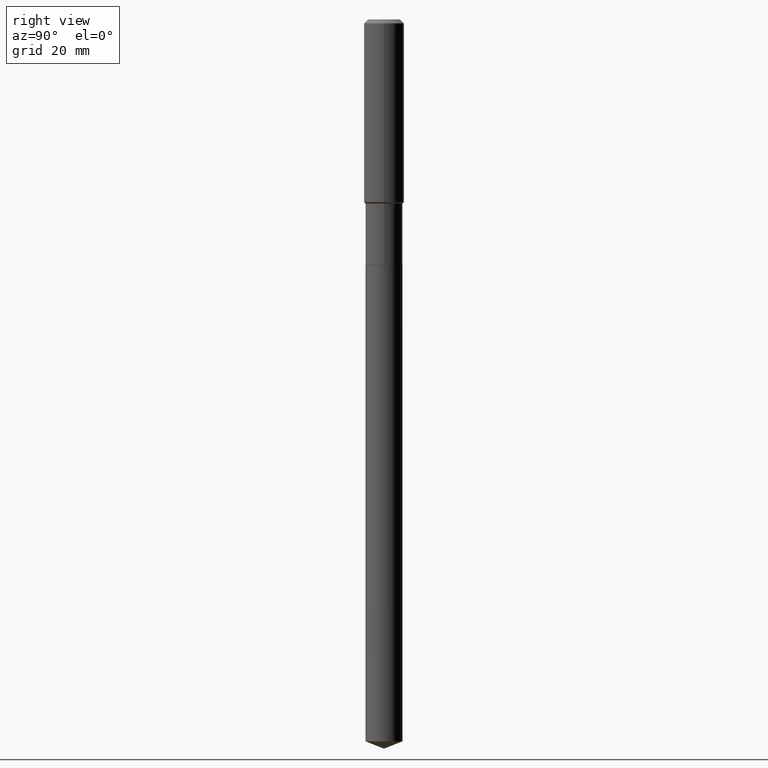
[diagram: clean part render]
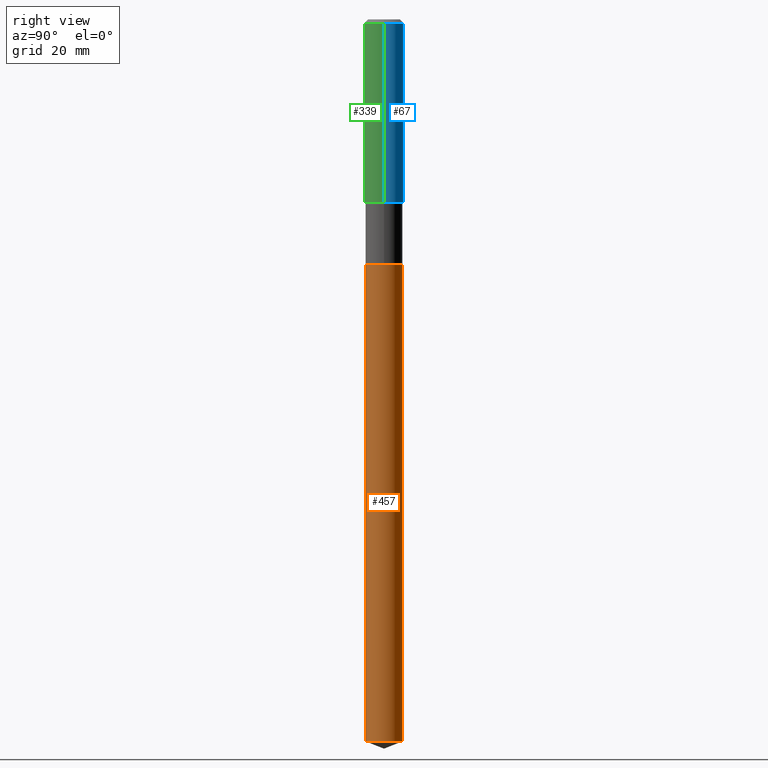
[diagram: same view with three faces highlighted in distinct colors, each labeled with its STEP entity id]
A machine part, right view with three faces highlighted in distinct colors.
Their STEP definitions:

[orange] entity #457 — the highlighted cylindrical surface (edge-blend (fillet) strip) has radius 3.6995 mm, axis along (-0, 0, 1).
#3 = ORIENTED_EDGE ( 'NONE', *, *, #90, .F. ) ;
#10 = CARTESIAN_POINT ( 'NONE',  ( -1.017068514004865822E-15, -0.1456500000000199302, -5.690626939226684833 ) ) ;
#15 = VERTEX_POINT ( 'NONE', #366 ) ;
#18 = FACE_OUTER_BOUND ( 'NONE', #352, .T. ) ;
#20 = DIRECTION ( 'NONE',  ( -2.445505692520665496E-29, 3.491428515511228693E-15, 1.000000000000000000 ) ) ;
#23 = DIRECTION ( 'NONE',  ( -6.982962677686265922E-15, -1.000000000000000000, 3.751250248766581581E-15 ) ) ;
#24 = LINE ( 'NONE', #134, #223 ) ;
#69 = CARTESIAN_POINT ( 'NONE',  ( -1.017068514004957330E-15, -0.1456500000000067463, -1.932999999999999385 ) ) ;
#90 = EDGE_CURVE ( 'NONE', #174, #203, #360, .T. ) ;
#100 = CARTESIAN_POINT ( 'NONE',  ( 4.727091202355868625E-29, -6.749033427983799432E-15, -1.932999999999999829 ) ) ;
#106 = EDGE_CURVE ( 'NONE', #174, #409, #477, .T. ) ;
#134 = CARTESIAN_POINT ( 'NONE',  ( 1.034905494634633067E-15, 0.1456499999999932571, -1.933000000000000496 ) ) ;
#144 = CYLINDRICAL_SURFACE ( 'NONE', #179, 0.1456500000000000017 ) ;
#161 = CARTESIAN_POINT ( 'NONE',  ( -1.017068514004957330E-15, -0.1456500000000067463, -1.932999999999999385 ) ) ;
#162 = CIRCLE ( 'NONE', #417, 0.1456500000000000017 ) ;
#174 = VERTEX_POINT ( 'NONE', #10 ) ;
#179 = AXIS2_PLACEMENT_3D ( 'NONE', #100, #484, #23 ) ;
#180 = ORIENTED_EDGE ( 'NONE', *, *, #388, .F. ) ;
#184 = CARTESIAN_POINT ( 'NONE',  ( 1.391638927260372987E-28, -1.986851927425302503E-14, -5.690626939226684833 ) ) ;
#202 = DIRECTION ( 'NONE',  ( -2.445505692520665216E-29, 3.491428515511228299E-15, 1.000000000000000000 ) ) ;
#203 = VERTEX_POINT ( 'NONE', #161 ) ;
#220 = DIRECTION ( 'NONE',  ( -2.445505692520665216E-29, 3.491428515511228299E-15, 1.000000000000000000 ) ) ;
#223 = VECTOR ( 'NONE', #202, 39.37007874015748143 ) ;
#262 = AXIS2_PLACEMENT_3D ( 'NONE', #184, #485, #297 ) ;
#297 = DIRECTION ( 'NONE',  ( -6.982962677686265922E-15, -1.000000000000000000, 0.000000000000000000 ) ) ;
#315 = EDGE_CURVE ( 'NONE', #409, #15, #24, .T. ) ;
#317 = DIRECTION ( 'NONE',  ( -6.982962677686265922E-15, -1.000000000000000000, 3.751250248766581581E-15 ) ) ;
#351 = CARTESIAN_POINT ( 'NONE',  ( 4.727091202355868625E-29, -6.749033427983799432E-15, -1.932999999999999829 ) ) ;
#352 = EDGE_LOOP ( 'NONE', ( #465, #442, #180, #3 ) ) ;
#360 = LINE ( 'NONE', #69, #393 ) ;
#364 = CARTESIAN_POINT ( 'NONE',  ( 1.034905494634725561E-15, 0.1456499999999801842, -5.690626939226684833 ) ) ;
#366 = CARTESIAN_POINT ( 'NONE',  ( 1.034905494634725758E-15, 0.1456499999999932848, -1.933000000000000496 ) ) ;
#388 = EDGE_CURVE ( 'NONE', #203, #15, #162, .T. ) ;
#393 = VECTOR ( 'NONE', #220, 39.37007874015748143 ) ;
#409 = VERTEX_POINT ( 'NONE', #364 ) ;
#417 = AXIS2_PLACEMENT_3D ( 'NONE', #351, #20, #317 ) ;
#442 = ORIENTED_EDGE ( 'NONE', *, *, #315, .T. ) ;
#457 = ADVANCED_FACE ( 'NONE', ( #18 ), #144, .T. ) ;
#465 = ORIENTED_EDGE ( 'NONE', *, *, #106, .T. ) ;
#477 = CIRCLE ( 'NONE', #262, 0.1456500000000000017 ) ;
#484 = DIRECTION ( 'NONE',  ( -2.445505692520665496E-29, 3.491428515511228693E-15, 1.000000000000000000 ) ) ;
#485 = DIRECTION ( 'NONE',  ( -2.445505692520665496E-29, 3.491428515511228693E-15, 1.000000000000000000 ) ) ;

[blue] entity #67 — the highlighted cylindrical surface (edge-blend (fillet) strip) has radius 4.0005 mm, axis along (-0, 0, 1).
#33 = DIRECTION ( 'NONE',  ( 1.000000000000000000, -6.982962677686265922E-15, 0.000000000000000000 ) ) ;
#67 = ADVANCED_FACE ( 'NONE', ( #107 ), #323, .T. ) ;
#68 = DIRECTION ( 'NONE',  ( 1.000000000000000000, -6.982962677686267499E-15, 4.876176775795936353E-29 ) ) ;
#75 = CIRCLE ( 'NONE', #286, 0.1575000000000000011 ) ;
#79 = CARTESIAN_POINT ( 'NONE',  ( 0.1575000000000000844, -1.099816621735587677E-15, 7.679978421878603638E-30 ) ) ;
#91 = LINE ( 'NONE', #240, #376 ) ;
#96 = VERTEX_POINT ( 'NONE', #152 ) ;
#101 = CARTESIAN_POINT ( 'NONE',  ( 0.000000000000000000, 0.000000000000000000, 0.000000000000000000 ) ) ;
#107 = FACE_OUTER_BOUND ( 'NONE', #249, .T. ) ;
#111 = CARTESIAN_POINT ( 'NONE',  ( 0.1575000000000001676, -6.129120916272196299E-15, -1.440449999999999564 ) ) ;
#130 = CARTESIAN_POINT ( 'NONE',  ( 3.522575541869379032E-29, -5.029304294536608030E-15, -1.440449999999999564 ) ) ;
#135 = ORIENTED_EDGE ( 'NONE', *, *, #358, .T. ) ;
#140 = CIRCLE ( 'NONE', #199, 0.1575000000000001676 ) ;
#148 = DIRECTION ( 'NONE',  ( -2.445468806185136597E-29, 3.491481338843145583E-15, 1.000000000000000000 ) ) ;
#152 = CARTESIAN_POINT ( 'NONE',  ( -0.1575000000000001676, -3.910199485714448849E-15, -1.440449999999999564 ) ) ;
#168 = ORIENTED_EDGE ( 'NONE', *, *, #298, .F. ) ;
#199 = AXIS2_PLACEMENT_3D ( 'NONE', #130, #279, #328 ) ;
#218 = ORIENTED_EDGE ( 'NONE', *, *, #404, .T. ) ;
#232 = AXIS2_PLACEMENT_3D ( 'NONE', #101, #441, #68 ) ;
#233 = VECTOR ( 'NONE', #412, 39.37007874015748143 ) ;
#240 = CARTESIAN_POINT ( 'NONE',  ( -0.1575000000000000844, 1.119104808822158392E-15, -7.747322767151481189E-30 ) ) ;
#249 = EDGE_LOOP ( 'NONE', ( #218, #135, #434, #168 ) ) ;
#274 = CARTESIAN_POINT ( 'NONE',  ( -0.1575000000000000011, -1.450538169532925352E-15, -0.03150000000000019451 ) ) ;
#279 = DIRECTION ( 'NONE',  ( -2.445468806185136597E-29, 3.491481338843145583E-15, 1.000000000000000000 ) ) ;
#280 = VERTEX_POINT ( 'NONE', #111 ) ;
#286 = AXIS2_PLACEMENT_3D ( 'NONE', #396, #148, #33 ) ;
#298 = EDGE_CURVE ( 'NONE', #280, #355, #450, .T. ) ;
#323 = CYLINDRICAL_SURFACE ( 'NONE', #232, 0.1575000000000000844 ) ;
#328 = DIRECTION ( 'NONE',  ( 1.000000000000000000, -6.982962677686267499E-15, 0.000000000000000000 ) ) ;
#344 = CARTESIAN_POINT ( 'NONE',  ( 0.1575000000000000011, -1.209798283909146741E-15, -0.03150000000000019451 ) ) ;
#355 = VERTEX_POINT ( 'NONE', #344 ) ;
#358 = EDGE_CURVE ( 'NONE', #96, #446, #91, .T. ) ;
#376 = VECTOR ( 'NONE', #389, 39.37007874015748143 ) ;
#389 = DIRECTION ( 'NONE',  ( -2.445468806185136877E-29, 3.491481338843145188E-15, 1.000000000000000000 ) ) ;
#396 = CARTESIAN_POINT ( 'NONE',  ( 7.703226739483228723E-31, -1.099816621735597661E-16, -0.03150000000000019451 ) ) ;
#404 = EDGE_CURVE ( 'NONE', #280, #96, #140, .T. ) ;
#412 = DIRECTION ( 'NONE',  ( -2.445468806185136877E-29, 3.491481338843145188E-15, 1.000000000000000000 ) ) ;
#434 = ORIENTED_EDGE ( 'NONE', *, *, #466, .F. ) ;
#441 = DIRECTION ( 'NONE',  ( -2.445468806185136597E-29, 3.491481338843145583E-15, 1.000000000000000000 ) ) ;
#446 = VERTEX_POINT ( 'NONE', #274 ) ;
#450 = LINE ( 'NONE', #79, #233 ) ;
#466 = EDGE_CURVE ( 'NONE', #355, #446, #75, .T. ) ;

[green] entity #339 — the highlighted cylindrical surface (edge-blend (fillet) strip) has radius 4.0005 mm, axis along (-0, 0, 1).
#5 = AXIS2_PLACEMENT_3D ( 'NONE', #371, #373, #155 ) ;
#19 = CIRCLE ( 'NONE', #432, 0.1575000000000001676 ) ;
#59 = FACE_OUTER_BOUND ( 'NONE', #300, .T. ) ;
#79 = CARTESIAN_POINT ( 'NONE',  ( 0.1575000000000000844, -1.099816621735587677E-15, 7.679978421878603638E-30 ) ) ;
#83 = DIRECTION ( 'NONE',  ( 1.000000000000000000, -6.982962677686267499E-15, 0.000000000000000000 ) ) ;
#91 = LINE ( 'NONE', #240, #376 ) ;
#96 = VERTEX_POINT ( 'NONE', #152 ) ;
#111 = CARTESIAN_POINT ( 'NONE',  ( 0.1575000000000001676, -6.129120916272196299E-15, -1.440449999999999564 ) ) ;
#117 = CARTESIAN_POINT ( 'NONE',  ( 3.522575541869379032E-29, -5.029304294536608030E-15, -1.440449999999999564 ) ) ;
#152 = CARTESIAN_POINT ( 'NONE',  ( -0.1575000000000001676, -3.910199485714448849E-15, -1.440449999999999564 ) ) ;
#155 = DIRECTION ( 'NONE',  ( 1.000000000000000000, -6.982962677686265922E-15, 0.000000000000000000 ) ) ;
#167 = CARTESIAN_POINT ( 'NONE',  ( 0.000000000000000000, 0.000000000000000000, 0.000000000000000000 ) ) ;
#169 = EDGE_CURVE ( 'NONE', #446, #355, #453, .T. ) ;
#201 = EDGE_CURVE ( 'NONE', #96, #280, #19, .T. ) ;
#207 = CYLINDRICAL_SURFACE ( 'NONE', #261, 0.1575000000000000844 ) ;
#233 = VECTOR ( 'NONE', #412, 39.37007874015748143 ) ;
#240 = CARTESIAN_POINT ( 'NONE',  ( -0.1575000000000000844, 1.119104808822158392E-15, -7.747322767151481189E-30 ) ) ;
#261 = AXIS2_PLACEMENT_3D ( 'NONE', #167, #321, #382 ) ;
#274 = CARTESIAN_POINT ( 'NONE',  ( -0.1575000000000000011, -1.450538169532925352E-15, -0.03150000000000019451 ) ) ;
#280 = VERTEX_POINT ( 'NONE', #111 ) ;
#298 = EDGE_CURVE ( 'NONE', #280, #355, #450, .T. ) ;
#300 = EDGE_LOOP ( 'NONE', ( #367, #487, #332, #469 ) ) ;
#321 = DIRECTION ( 'NONE',  ( -2.445468806185136597E-29, 3.491481338843145583E-15, 1.000000000000000000 ) ) ;
#332 = ORIENTED_EDGE ( 'NONE', *, *, #298, .T. ) ;
#339 = ADVANCED_FACE ( 'NONE', ( #59 ), #207, .T. ) ;
#344 = CARTESIAN_POINT ( 'NONE',  ( 0.1575000000000000011, -1.209798283909146741E-15, -0.03150000000000019451 ) ) ;
#355 = VERTEX_POINT ( 'NONE', #344 ) ;
#358 = EDGE_CURVE ( 'NONE', #96, #446, #91, .T. ) ;
#367 = ORIENTED_EDGE ( 'NONE', *, *, #358, .F. ) ;
#371 = CARTESIAN_POINT ( 'NONE',  ( 7.703226739483228723E-31, -1.099816621735597661E-16, -0.03150000000000019451 ) ) ;
#373 = DIRECTION ( 'NONE',  ( -2.445468806185136597E-29, 3.491481338843145583E-15, 1.000000000000000000 ) ) ;
#376 = VECTOR ( 'NONE', #389, 39.37007874015748143 ) ;
#378 = DIRECTION ( 'NONE',  ( -2.445468806185136597E-29, 3.491481338843145583E-15, 1.000000000000000000 ) ) ;
#382 = DIRECTION ( 'NONE',  ( 1.000000000000000000, -6.982962677686267499E-15, 4.876176775795936353E-29 ) ) ;
#389 = DIRECTION ( 'NONE',  ( -2.445468806185136877E-29, 3.491481338843145188E-15, 1.000000000000000000 ) ) ;
#412 = DIRECTION ( 'NONE',  ( -2.445468806185136877E-29, 3.491481338843145188E-15, 1.000000000000000000 ) ) ;
#432 = AXIS2_PLACEMENT_3D ( 'NONE', #117, #378, #83 ) ;
#446 = VERTEX_POINT ( 'NONE', #274 ) ;
#450 = LINE ( 'NONE', #79, #233 ) ;
#453 = CIRCLE ( 'NONE', #5, 0.1575000000000000011 ) ;
#469 = ORIENTED_EDGE ( 'NONE', *, *, #169, .F. ) ;
#487 = ORIENTED_EDGE ( 'NONE', *, *, #201, .T. ) ;